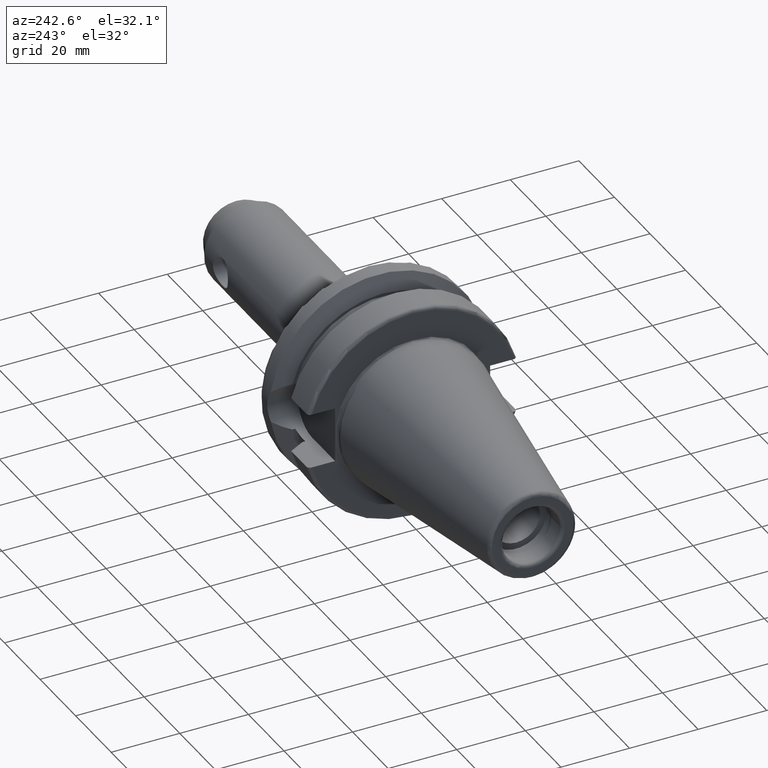
[diagram: clean part render]
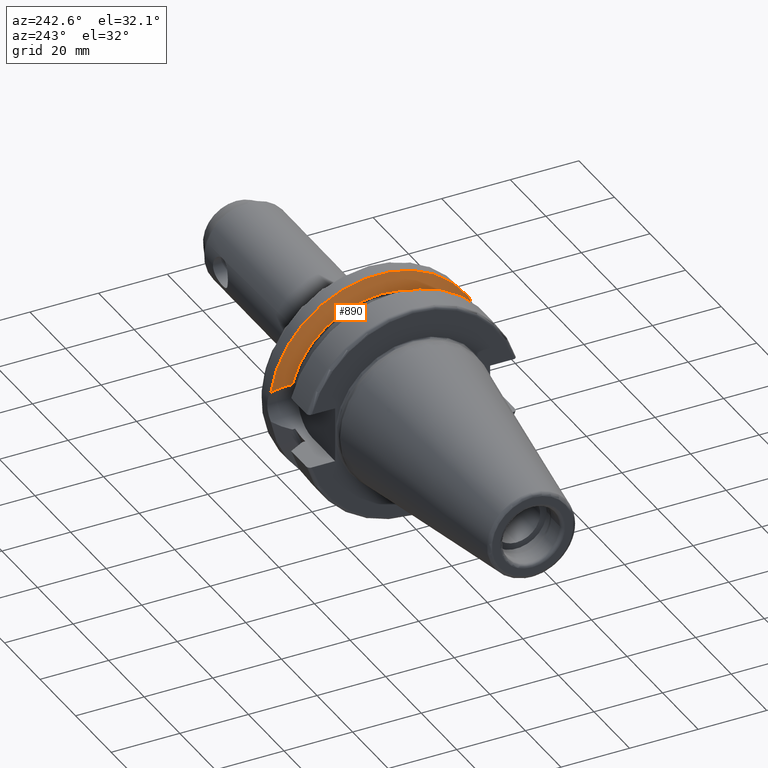
[diagram: same view with one face highlighted and labeled with its STEP entity id]
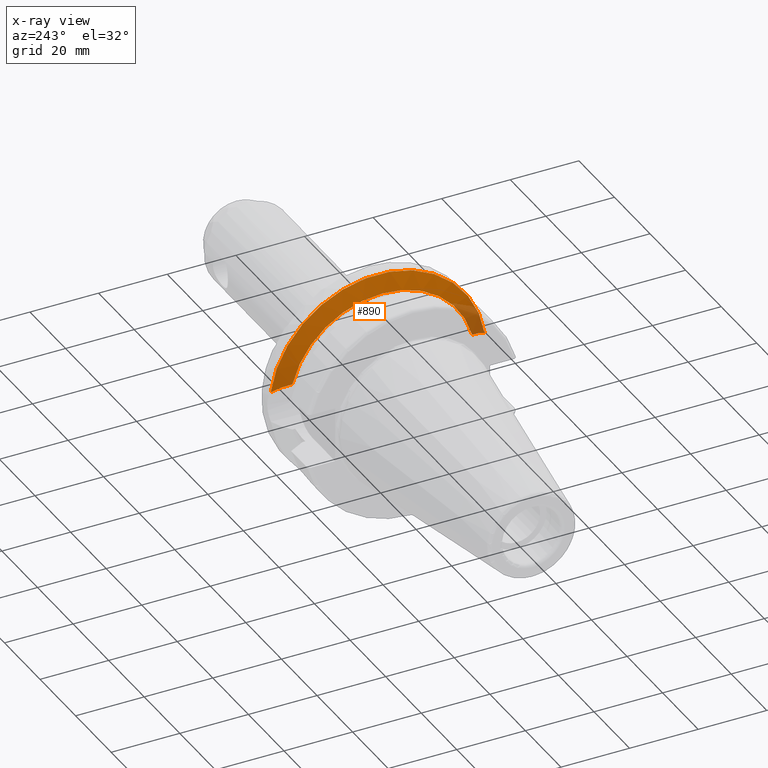
[diagram: x-ray of the same camera — body ghosted, the highlighted face saturated]
A machine part, auxiliary view. The second image highlights one B-rep face of the part: STEP entity #890.
The next image is the same camera in x-ray: the body ghosted, the highlighted face saturated — about 9% of this face is hidden behind the body in this view.
In plain terms, the highlighted conical surface has half-angle 60.125 deg.
Its self-contained STEP definition (entity closure, byte-faithful):
#26=CONICAL_SURFACE('',#1004,29.2970358274569,1.0493792127616);
#42=B_SPLINE_CURVE_WITH_KNOTS('',3,(#1535,#1536,#1537,#1538,#1539,#1540),
 .UNSPECIFIED.,.F.,.F.,(4,2,4),(1.46421027899563,1.54570476603974,2.04294020568402),
 .UNSPECIFIED.);
#51=B_SPLINE_CURVE_WITH_KNOTS('',3,(#1694,#1695,#1696,#1697,#1698,#1699),
 .UNSPECIFIED.,.F.,.F.,(4,2,4),(3.12975744792551,3.6269928875698,3.7084873746139),
 .UNSPECIFIED.);
#212=FACE_OUTER_BOUND('',#268,.T.);
#268=EDGE_LOOP('',(#758,#759,#760,#761));
#320=CIRCLE('',#983,31.5);
#330=CIRCLE('',#1005,27.0940716549138);
#387=VERTEX_POINT('',#1527);
#388=VERTEX_POINT('',#1534);
#408=VERTEX_POINT('',#1614);
#421=VERTEX_POINT('',#1692);
#489=EDGE_CURVE('',#388,#387,#42,.T.);
#514=EDGE_CURVE('',#408,#387,#320,.T.);
#536=EDGE_CURVE('',#408,#421,#51,.T.);
#547=EDGE_CURVE('',#421,#388,#330,.T.);
#758=ORIENTED_EDGE('',*,*,#489,.T.);
#759=ORIENTED_EDGE('',*,*,#514,.F.);
#760=ORIENTED_EDGE('',*,*,#536,.T.);
#761=ORIENTED_EDGE('',*,*,#547,.T.);
#890=ADVANCED_FACE('',(#212),#26,.T.);
#983=AXIS2_PLACEMENT_3D('',#1625,#1175,#1176);
#1004=AXIS2_PLACEMENT_3D('',#1731,#1232,#1233);
#1005=AXIS2_PLACEMENT_3D('',#1732,#1234,#1235);
#1175=DIRECTION('center_axis',(1.,0.,0.));
#1176=DIRECTION('ref_axis',(0.,0.,-1.));
#1232=DIRECTION('center_axis',(1.,0.,0.));
#1233=DIRECTION('ref_axis',(0.,1.,0.));
#1234=DIRECTION('center_axis',(1.,0.,0.));
#1235=DIRECTION('ref_axis',(0.,0.,-1.));
#1527=CARTESIAN_POINT('',(21.6309636926618,-31.1782420264945,4.49079326370462));
#1534=CARTESIAN_POINT('',(19.1,-26.201311395455,6.89782574439221));
#1535=CARTESIAN_POINT('Ctrl Pts',(19.1,-26.201311395455,6.89782574439221));
#1536=CARTESIAN_POINT('Ctrl Pts',(19.2210929544554,-26.438473693351,6.82497151762397));
#1537=CARTESIAN_POINT('Ctrl Pts',(19.3406963650696,-26.6728819297427,6.74867108656043));
#1538=CARTESIAN_POINT('Ctrl Pts',(20.1784155384866,-28.3157123387483,6.1823136897693));
#1539=CARTESIAN_POINT('Ctrl Pts',(20.9728756148302,-29.8797957262938,5.46983244373119));
#1540=CARTESIAN_POINT('Ctrl Pts',(21.6309636926618,-31.1782420264945,4.49079326370462));
#1614=CARTESIAN_POINT('',(21.6309636926618,31.1782420264945,4.49079326370462));
#1625=CARTESIAN_POINT('Origin',(21.6309636926618,0.,0.));
#1692=CARTESIAN_POINT('',(19.1,26.201311395455,6.89782574439221));
#1694=CARTESIAN_POINT('Ctrl Pts',(21.6309636926618,31.1782420264945,4.49079326370461));
#1695=CARTESIAN_POINT('Ctrl Pts',(20.9728756148302,29.8797957262938,5.46983244373119));
#1696=CARTESIAN_POINT('Ctrl Pts',(20.1784155384866,28.3157123387483,6.1823136897693));
#1697=CARTESIAN_POINT('Ctrl Pts',(19.3406963650696,26.6728819297427,6.74867108656043));
#1698=CARTESIAN_POINT('Ctrl Pts',(19.2210929544554,26.438473693351,6.82497151762397));
#1699=CARTESIAN_POINT('Ctrl Pts',(19.1,26.201311395455,6.89782574439222));
#1731=CARTESIAN_POINT('Origin',(20.3654818463309,0.,0.));
#1732=CARTESIAN_POINT('Origin',(19.1,0.,0.));